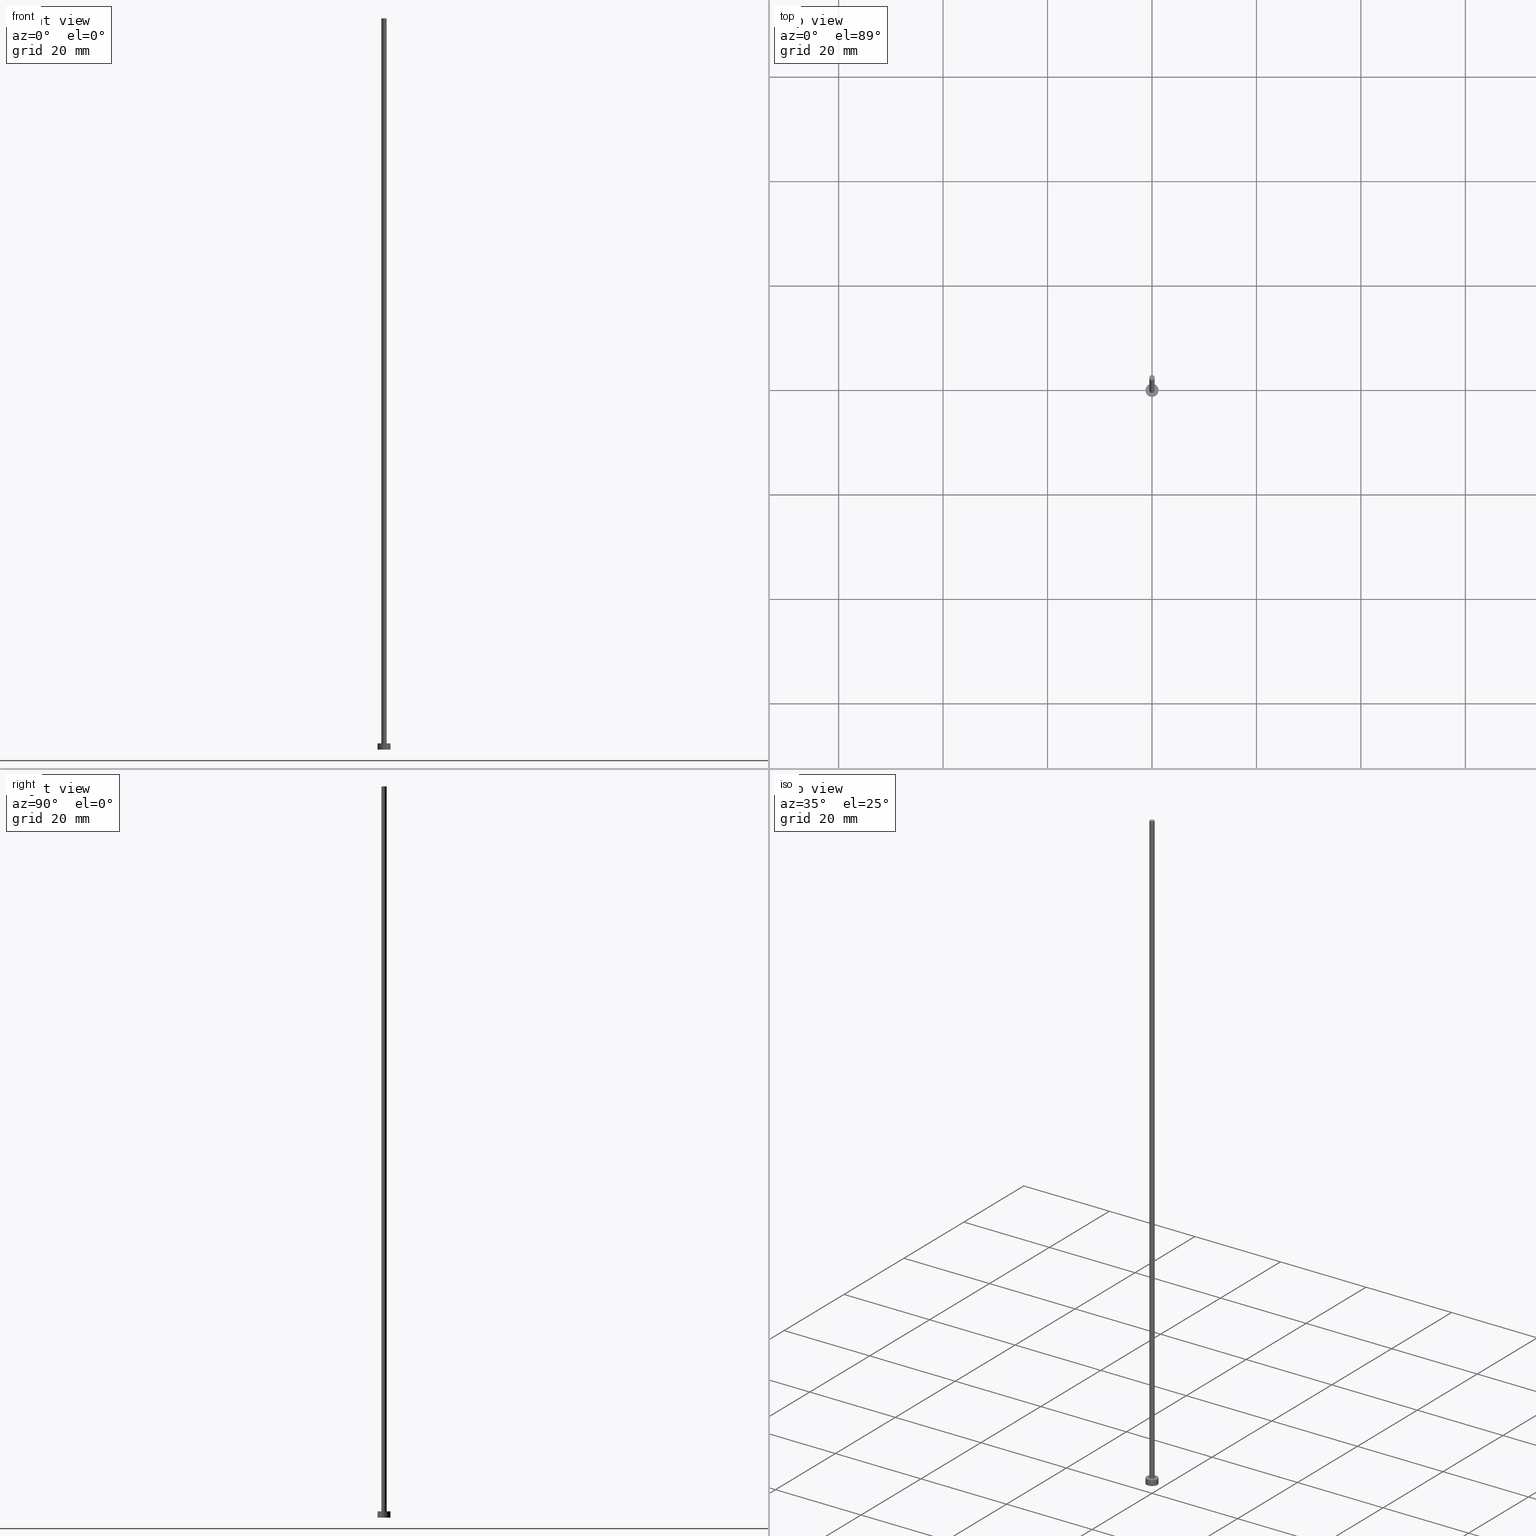
[diagram: canonical four-view strip — front | top / right | iso, engineering-drawing reading convention]
A machine part, canonical four-view strip (front | top / right | iso — engineering-drawing reading convention). The complete STEP part file that produces these views, byte-faithful:
ISO-10303-21;
HEADER;
FILE_DESCRIPTION (( 'STEP AP203' ),
    '1' );
FILE_NAME ('da0a.STEP',
    '2023-09-27T12:15:34',
    ( '' ),
    ( '' ),
    'SwSTEP 2.0',
    'SolidWorks 2019',
    '' );
FILE_SCHEMA (( 'CONFIG_CONTROL_DESIGN' ));
ENDSEC;

DATA;
#1 = PERSON_AND_ORGANIZATION ( #19, #125 ) ;
#2 = DIRECTION ( 'NONE',  ( -1.000000000000000000, 0.000000000000000000, 0.000000000000000000 ) ) ;
#3 = VECTOR ( 'NONE', #30, 1000.000000000000000 ) ;
#4 = LINE ( 'NONE', #155, #228 ) ;
#5 = APPROVAL_ROLE ( '' ) ;
#6 = FACE_OUTER_BOUND ( 'NONE', #32, .T. ) ;
#7 = LOCAL_TIME ( 14, 15, 34.00000000000000000, #142 ) ;
#8 = FACE_OUTER_BOUND ( 'NONE', #252, .T. ) ;
#9 =( NAMED_UNIT ( * ) PLANE_ANGLE_UNIT ( ) SI_UNIT ( $, .RADIAN. ) );
#10 = DIRECTION ( 'NONE',  ( -0.000000000000000000, -0.000000000000000000, -1.000000000000000000 ) ) ;
#11 = PRODUCT_DEFINITION_FORMATION_WITH_SPECIFIED_SOURCE ( 'LIBOVOLN�', '', #188, .NOT_KNOWN. ) ;
#12 = ORIENTED_EDGE ( 'NONE', *, *, #185, .T. ) ;
#13 = DIRECTION ( 'NONE',  ( 0.000000000000000000, 0.000000000000000000, 1.000000000000000000 ) ) ;
#14 = CC_DESIGN_DATE_AND_TIME_ASSIGNMENT ( #74, #233, ( #140 ) ) ;
#15 = ORIENTED_EDGE ( 'NONE', *, *, #128, .F. ) ;
#16 = DIRECTION ( 'NONE',  ( 0.000000000000000000, 0.000000000000000000, 1.000000000000000000 ) ) ;
#17 = ORIENTED_EDGE ( 'NONE', *, *, #173, .T. ) ;
#18 = ADVANCED_FACE ( 'NONE', ( #171 ), #172, .T. ) ;
#19 = PERSON ( 'NEUR�EN�', 'NEUR�EN�', 'NEUR�EN�', ('NEUR�EN�'), ('NEUR�EN�'), ('NEUR�EN�') ) ;
#20 = AXIS2_PLACEMENT_3D ( 'NONE', #135, #100, #212 ) ;
#21 = AXIS2_PLACEMENT_3D ( 'NONE', #29, #183, #24 ) ;
#22 = CARTESIAN_POINT ( 'NONE',  ( 0.000000000000000000, 0.000000000000000000, 140.0000000000000000 ) ) ;
#23 = SECURITY_CLASSIFICATION_LEVEL ( 'unclassified' ) ;
#24 = DIRECTION ( 'NONE',  ( 1.000000000000000000, 0.000000000000000000, -0.000000000000000000 ) ) ;
#25 = PERSON_AND_ORGANIZATION ( #19, #125 ) ;
#26 = CARTESIAN_POINT ( 'NONE',  ( 0.000000000000000000, 0.000000000000000000, 1.199999999999999956 ) ) ;
#27 = CARTESIAN_POINT ( 'NONE',  ( 1.250000000000000000, 1.530808498934191571E-16, 0.000000000000000000 ) ) ;
#28 = CARTESIAN_POINT ( 'NONE',  ( 0.000000000000000000, 0.000000000000000000, 140.0000000000000000 ) ) ;
#29 = CARTESIAN_POINT ( 'NONE',  ( 0.000000000000000000, 0.000000000000000000, 0.000000000000000000 ) ) ;
#30 = DIRECTION ( 'NONE',  ( -0.000000000000000000, -0.000000000000000000, -1.000000000000000000 ) ) ;
#31 = LINE ( 'NONE', #204, #143 ) ;
#32 = EDGE_LOOP ( 'NONE', ( #15, #134 ) ) ;
#33 = CC_DESIGN_APPROVAL ( #99, ( #145 ) ) ;
#34 = ORIENTED_EDGE ( 'NONE', *, *, #63, .F. ) ;
#35 = APPROVAL ( #124, 'NEUR�EN�' ) ;
#36 = ORIENTED_EDGE ( 'NONE', *, *, #147, .F. ) ;
#37 = APPROVAL ( #202, 'NEUR�EN�' ) ;
#38 = DIRECTION ( 'NONE',  ( 1.000000000000000000, 0.000000000000000000, 0.000000000000000000 ) ) ;
#39 = CIRCLE ( 'NONE', #64, 0.5000000000000000000 ) ;
#40 = VERTEX_POINT ( 'NONE', #215 ) ;
#41 = LOCAL_TIME ( 14, 15, 34.00000000000000000, #82 ) ;
#42 = CARTESIAN_POINT ( 'NONE',  ( 0.000000000000000000, 0.000000000000000000, 1.199999999999999956 ) ) ;
#43 = CALENDAR_DATE ( 2023, 27, 9 ) ;
#44 = LOCAL_TIME ( 14, 15, 34.00000000000000000, #240 ) ;
#45 = PERSON_AND_ORGANIZATION_ROLE ( 'creator' ) ;
#46 = CARTESIAN_POINT ( 'NONE',  ( 0.000000000000000000, 0.000000000000000000, 0.000000000000000000 ) ) ;
#47 = SHAPE_DEFINITION_REPRESENTATION ( #162, #90 ) ;
#48 = CARTESIAN_POINT ( 'NONE',  ( -0.5000000000000000000, 0.000000000000000000, 140.0000000000000000 ) ) ;
#49 = PERSON_AND_ORGANIZATION ( #19, #125 ) ;
#50 = CARTESIAN_POINT ( 'NONE',  ( 0.000000000000000000, 0.000000000000000000, 0.000000000000000000 ) ) ;
#51 = UNCERTAINTY_MEASURE_WITH_UNIT (LENGTH_MEASURE( 1.000000000000000082E-05 ), #113, 'distance_accuracy_value', 'NONE');
#52 = ORIENTED_EDGE ( 'NONE', *, *, #207, .F. ) ;
#53 = MANIFOLD_SOLID_BREP ( 'P�idat vysunut�m3', #111 ) ;
#54 =( NAMED_UNIT ( * ) SI_UNIT ( $, .STERADIAN. ) SOLID_ANGLE_UNIT ( ) );
#55 = CC_DESIGN_PERSON_AND_ORGANIZATION_ASSIGNMENT ( #136, #154, ( #11 ) ) ;
#56 = DIRECTION ( 'NONE',  ( 1.000000000000000000, 0.000000000000000000, 0.000000000000000000 ) ) ;
#57 = ORIENTED_EDGE ( 'NONE', *, *, #81, .T. ) ;
#58 = VERTEX_POINT ( 'NONE', #59 ) ;
#59 = CARTESIAN_POINT ( 'NONE',  ( 1.250000000000000000, 1.530808498934191571E-16, 1.199999999999999956 ) ) ;
#60 = EDGE_CURVE ( 'NONE', #58, #209, #241, .T. ) ;
#61 = CARTESIAN_POINT ( 'NONE',  ( 1.250000000000000000, 1.530808498934191571E-16, 1.199999999999999956 ) ) ;
#62 = LINE ( 'NONE', #61, #224 ) ;
#63 = EDGE_CURVE ( 'NONE', #71, #117, #88, .T. ) ;
#64 = AXIS2_PLACEMENT_3D ( 'NONE', #73, #213, #38 ) ;
#65 = DIRECTION ( 'NONE',  ( -1.000000000000000000, 0.000000000000000000, 0.000000000000000000 ) ) ;
#66 = APPROVAL_PERSON_ORGANIZATION ( #129, #37, #109 ) ;
#67 = DATE_AND_TIME ( #43, #41 ) ;
#68 = CARTESIAN_POINT ( 'NONE',  ( 0.000000000000000000, 0.000000000000000000, 0.000000000000000000 ) ) ;
#69 = APPROVAL_PERSON_ORGANIZATION ( #25, #35, #5 ) ;
#70 = AXIS2_PLACEMENT_3D ( 'NONE', #26, #239, #139 ) ;
#71 = VERTEX_POINT ( 'NONE', #132 ) ;
#72 = CALENDAR_DATE ( 2023, 27, 9 ) ;
#73 = CARTESIAN_POINT ( 'NONE',  ( 0.000000000000000000, 0.000000000000000000, 1.199999999999999956 ) ) ;
#74 = DATE_AND_TIME ( #72, #175 ) ;
#75 = DIRECTION ( 'NONE',  ( 1.000000000000000000, 0.000000000000000000, -0.000000000000000000 ) ) ;
#76 = EDGE_CURVE ( 'NONE', #40, #187, #253, .T. ) ;
#77 = CARTESIAN_POINT ( 'NONE',  ( 0.000000000000000000, 0.000000000000000000, 140.0000000000000000 ) ) ;
#78 = DIRECTION ( 'NONE',  ( 1.000000000000000000, 0.000000000000000000, 0.000000000000000000 ) ) ;
#79 = DATE_AND_TIME ( #126, #121 ) ;
#80 = DIRECTION ( 'NONE',  ( 0.000000000000000000, 0.000000000000000000, 1.000000000000000000 ) ) ;
#81 = EDGE_CURVE ( 'NONE', #187, #40, #39, .T. ) ;
#82 = COORDINATED_UNIVERSAL_TIME_OFFSET ( 1, 0, .AHEAD. ) ;
#83 = CARTESIAN_POINT ( 'NONE',  ( 0.000000000000000000, 0.000000000000000000, 1.199999999999999956 ) ) ;
#84 = PERSON_AND_ORGANIZATION ( #19, #125 ) ;
#85 = PLANE ( 'NONE',  #21 ) ;
#86 = AXIS2_PLACEMENT_3D ( 'NONE', #28, #237, #156 ) ;
#87 = FACE_OUTER_BOUND ( 'NONE', #192, .T. ) ;
#88 = CIRCLE ( 'NONE', #115, 0.5000000000000000000 ) ;
#89 = PERSON_AND_ORGANIZATION_ROLE ( 'design_owner' ) ;
#90 = ADVANCED_BREP_SHAPE_REPRESENTATION ( 'da0a', ( #53, #103 ), #236 ) ;
#91 = CC_DESIGN_APPROVAL ( #37, ( #140 ) ) ;
#92 = CC_DESIGN_PERSON_AND_ORGANIZATION_ASSIGNMENT ( #49, #89, ( #188 ) ) ;
#93 = ORIENTED_EDGE ( 'NONE', *, *, #185, .F. ) ;
#94 = DIRECTION ( 'NONE',  ( 1.000000000000000000, 0.000000000000000000, 0.000000000000000000 ) ) ;
#95 = AXIS2_PLACEMENT_3D ( 'NONE', #194, #80, #181 ) ;
#96 = ORIENTED_EDGE ( 'NONE', *, *, #254, .F. ) ;
#97 = ORIENTED_EDGE ( 'NONE', *, *, #128, .T. ) ;
#98 = ORIENTED_EDGE ( 'NONE', *, *, #245, .F. ) ;
#99 = APPROVAL ( #243, 'NEUR�EN�' ) ;
#100 = DIRECTION ( 'NONE',  ( 0.000000000000000000, 0.000000000000000000, 1.000000000000000000 ) ) ;
#101 = APPLICATION_CONTEXT ( 'configuration controlled 3d designs of mechanical parts and assemblies' ) ;
#102 = CIRCLE ( 'NONE', #201, 1.250000000000000000 ) ;
#103 = AXIS2_PLACEMENT_3D ( 'NONE', #50, #13, #94 ) ;
#104 = DATE_TIME_ROLE ( 'classification_date' ) ;
#105 = CYLINDRICAL_SURFACE ( 'NONE', #161, 1.250000000000000000 ) ;
#106 = DIRECTION ( 'NONE',  ( -1.000000000000000000, 0.000000000000000000, 0.000000000000000000 ) ) ;
#107 = AXIS2_PLACEMENT_3D ( 'NONE', #83, #222, #65 ) ;
#108 = ADVANCED_FACE ( 'NONE', ( #169 ), #179, .T. ) ;
#109 = APPROVAL_ROLE ( '' ) ;
#110 = CALENDAR_DATE ( 2023, 27, 9 ) ;
#111 = CLOSED_SHELL ( 'NONE', ( #232, #108, #223, #133, #227, #112, #18 ) ) ;
#112 = ADVANCED_FACE ( 'NONE', ( #8 ), #174, .T. ) ;
#113 =( LENGTH_UNIT ( ) NAMED_UNIT ( * ) SI_UNIT ( .MILLI., .METRE. ) );
#114 = VERTEX_POINT ( 'NONE', #153 ) ;
#115 = AXIS2_PLACEMENT_3D ( 'NONE', #77, #235, #56 ) ;
#116 = CIRCLE ( 'NONE', #170, 1.250000000000000000 ) ;
#117 = VERTEX_POINT ( 'NONE', #48 ) ;
#118 = EDGE_LOOP ( 'NONE', ( #34, #152, #57, #96 ) ) ;
#119 = ORIENTED_EDGE ( 'NONE', *, *, #207, .T. ) ;
#120 = CC_DESIGN_DATE_AND_TIME_ASSIGNMENT ( #216, #104, ( #145 ) ) ;
#121 = LOCAL_TIME ( 14, 15, 34.00000000000000000, #238 ) ;
#122 = PLANE ( 'NONE',  #70 ) ;
#123 = CARTESIAN_POINT ( 'NONE',  ( 0.000000000000000000, 0.000000000000000000, 140.0000000000000000 ) ) ;
#124 = APPROVAL_STATUS ( 'not_yet_approved' ) ;
#125 = ORGANIZATION ( 'NEUR�EN�', 'NEUR�EN�', '' ) ;
#126 = CALENDAR_DATE ( 2023, 27, 9 ) ;
#127 = DIRECTION ( 'NONE',  ( -0.000000000000000000, -0.000000000000000000, -1.000000000000000000 ) ) ;
#128 = EDGE_CURVE ( 'NONE', #114, #191, #102, .T. ) ;
#129 = PERSON_AND_ORGANIZATION ( #19, #125 ) ;
#130 = ORIENTED_EDGE ( 'NONE', *, *, #163, .T. ) ;
#131 = CARTESIAN_POINT ( 'NONE',  ( 0.000000000000000000, 0.000000000000000000, 1.199999999999999956 ) ) ;
#132 = CARTESIAN_POINT ( 'NONE',  ( 0.5000000000000000000, 6.123233995736766036E-17, 140.0000000000000000 ) ) ;
#133 = ADVANCED_FACE ( 'NONE', ( #196, #87 ), #122, .T. ) ;
#134 = ORIENTED_EDGE ( 'NONE', *, *, #173, .F. ) ;
#135 = CARTESIAN_POINT ( 'NONE',  ( 0.000000000000000000, 0.000000000000000000, 1.199999999999999956 ) ) ;
#136 = PERSON_AND_ORGANIZATION ( #19, #125 ) ;
#137 = CARTESIAN_POINT ( 'NONE',  ( -1.250000000000000000, 0.000000000000000000, 1.199999999999999956 ) ) ;
#138 = AXIS2_PLACEMENT_3D ( 'NONE', #141, #203, #210 ) ;
#139 = DIRECTION ( 'NONE',  ( 1.000000000000000000, 0.000000000000000000, -0.000000000000000000 ) ) ;
#140 = PRODUCT_DEFINITION ( 'NEZN�M�', '', #11, #159 ) ;
#141 = CARTESIAN_POINT ( 'NONE',  ( 0.000000000000000000, 0.000000000000000000, 140.0000000000000000 ) ) ;
#142 = COORDINATED_UNIVERSAL_TIME_OFFSET ( 1, 0, .AHEAD. ) ;
#143 = VECTOR ( 'NONE', #10, 1000.000000000000000 ) ;
#144 = ORIENTED_EDGE ( 'NONE', *, *, #147, .T. ) ;
#145 = SECURITY_CLASSIFICATION ( '', '', #23 ) ;
#146 = APPLICATION_PROTOCOL_DEFINITION ( 'international standard', 'config_control_design', 1994, #219 ) ;
#147 = EDGE_CURVE ( 'NONE', #209, #58, #214, .T. ) ;
#148 = DIRECTION ( 'NONE',  ( 0.000000000000000000, 0.000000000000000000, 1.000000000000000000 ) ) ;
#149 = EDGE_LOOP ( 'NONE', ( #226, #250 ) ) ;
#150 = PRODUCT_RELATED_PRODUCT_CATEGORY ( 'detail', '', ( #188 ) ) ;
#151 = CC_DESIGN_APPROVAL ( #35, ( #11 ) ) ;
#152 = ORIENTED_EDGE ( 'NONE', *, *, #245, .T. ) ;
#153 = CARTESIAN_POINT ( 'NONE',  ( -1.250000000000000000, 0.000000000000000000, 0.000000000000000000 ) ) ;
#154 = PERSON_AND_ORGANIZATION_ROLE ( 'design_supplier' ) ;
#155 = CARTESIAN_POINT ( 'NONE',  ( -1.250000000000000000, 0.000000000000000000, 1.199999999999999956 ) ) ;
#156 = DIRECTION ( 'NONE',  ( 1.000000000000000000, 0.000000000000000000, 0.000000000000000000 ) ) ;
#157 = PERSON_AND_ORGANIZATION_ROLE ( 'classification_officer' ) ;
#158 = FACE_OUTER_BOUND ( 'NONE', #118, .T. ) ;
#159 = DESIGN_CONTEXT ( 'detailed design', #219, 'design' ) ;
#160 = CARTESIAN_POINT ( 'NONE',  ( 0.5000000000000000000, 6.123233995736766036E-17, 140.0000000000000000 ) ) ;
#161 = AXIS2_PLACEMENT_3D ( 'NONE', #42, #127, #106 ) ;
#162 = PRODUCT_DEFINITION_SHAPE ( 'NONE', 'NONE',  #140 ) ;
#163 = EDGE_CURVE ( 'NONE', #117, #71, #234, .T. ) ;
#164 = APPLICATION_PROTOCOL_DEFINITION ( 'international standard', 'config_control_design', 1994, #101 ) ;
#165 = COORDINATED_UNIVERSAL_TIME_OFFSET ( 1, 0, .AHEAD. ) ;
#166 = EDGE_LOOP ( 'NONE', ( #52, #36, #12, #97 ) ) ;
#167 = DIRECTION ( 'NONE',  ( 1.000000000000000000, 0.000000000000000000, 0.000000000000000000 ) ) ;
#168 = AXIS2_PLACEMENT_3D ( 'NONE', #131, #16, #167 ) ;
#169 = FACE_OUTER_BOUND ( 'NONE', #231, .T. ) ;
#170 = AXIS2_PLACEMENT_3D ( 'NONE', #46, #198, #177 ) ;
#171 = FACE_OUTER_BOUND ( 'NONE', #255, .T. ) ;
#172 = PLANE ( 'NONE',  #186 ) ;
#173 = EDGE_CURVE ( 'NONE', #191, #114, #116, .T. ) ;
#174 = CYLINDRICAL_SURFACE ( 'NONE', #182, 0.5000000000000000000 ) ;
#175 = LOCAL_TIME ( 14, 15, 34.00000000000000000, #165 ) ;
#176 = PERSON_AND_ORGANIZATION ( #19, #125 ) ;
#177 = DIRECTION ( 'NONE',  ( 1.000000000000000000, 0.000000000000000000, 0.000000000000000000 ) ) ;
#178 = APPROVAL_DATE_TIME ( #67, #99 ) ;
#179 = CYLINDRICAL_SURFACE ( 'NONE', #107, 1.250000000000000000 ) ;
#180 = CC_DESIGN_PERSON_AND_ORGANIZATION_ASSIGNMENT ( #84, #45, ( #11 ) ) ;
#181 = DIRECTION ( 'NONE',  ( 1.000000000000000000, 0.000000000000000000, 0.000000000000000000 ) ) ;
#182 = AXIS2_PLACEMENT_3D ( 'NONE', #123, #221, #2 ) ;
#183 = DIRECTION ( 'NONE',  ( 0.000000000000000000, 0.000000000000000000, 1.000000000000000000 ) ) ;
#184 = APPROVAL_DATE_TIME ( #225, #37 ) ;
#185 = EDGE_CURVE ( 'NONE', #209, #114, #4, .T. ) ;
#186 = AXIS2_PLACEMENT_3D ( 'NONE', #22, #148, #75 ) ;
#187 = VERTEX_POINT ( 'NONE', #246 ) ;
#188 = PRODUCT ( 'da0a', 'da0a', '', ( #249 ) ) ;
#189 = PERSON_AND_ORGANIZATION ( #19, #125 ) ;
#190 = ORIENTED_EDGE ( 'NONE', *, *, #254, .T. ) ;
#191 = VERTEX_POINT ( 'NONE', #27 ) ;
#192 = EDGE_LOOP ( 'NONE', ( #144, #229 ) ) ;
#193 = APPROVAL_DATE_TIME ( #79, #35 ) ;
#194 = CARTESIAN_POINT ( 'NONE',  ( 0.000000000000000000, 0.000000000000000000, 1.199999999999999956 ) ) ;
#195 = APPROVAL_ROLE ( '' ) ;
#196 = FACE_BOUND ( 'NONE', #149, .T. ) ;
#197 = CC_DESIGN_PERSON_AND_ORGANIZATION_ASSIGNMENT ( #1, #157, ( #145 ) ) ;
#198 = DIRECTION ( 'NONE',  ( 0.000000000000000000, 0.000000000000000000, 1.000000000000000000 ) ) ;
#199 = DIRECTION ( 'NONE',  ( -0.000000000000000000, -0.000000000000000000, -1.000000000000000000 ) ) ;
#200 = DIRECTION ( 'NONE',  ( -0.000000000000000000, -0.000000000000000000, -1.000000000000000000 ) ) ;
#201 = AXIS2_PLACEMENT_3D ( 'NONE', #68, #217, #78 ) ;
#202 = APPROVAL_STATUS ( 'not_yet_approved' ) ;
#203 = DIRECTION ( 'NONE',  ( -0.000000000000000000, -0.000000000000000000, -1.000000000000000000 ) ) ;
#204 = CARTESIAN_POINT ( 'NONE',  ( -0.5000000000000000000, 0.000000000000000000, 140.0000000000000000 ) ) ;
#205 = ORIENTED_EDGE ( 'NONE', *, *, #60, .F. ) ;
#206 = LINE ( 'NONE', #160, #3 ) ;
#207 = EDGE_CURVE ( 'NONE', #58, #191, #62, .T. ) ;
#208 = CC_DESIGN_SECURITY_CLASSIFICATION ( #145, ( #11 ) ) ;
#209 = VERTEX_POINT ( 'NONE', #137 ) ;
#210 = DIRECTION ( 'NONE',  ( -1.000000000000000000, 0.000000000000000000, 0.000000000000000000 ) ) ;
#211 = ORIENTED_EDGE ( 'NONE', *, *, #63, .T. ) ;
#212 = DIRECTION ( 'NONE',  ( 1.000000000000000000, 0.000000000000000000, 0.000000000000000000 ) ) ;
#213 = DIRECTION ( 'NONE',  ( 0.000000000000000000, 0.000000000000000000, 1.000000000000000000 ) ) ;
#214 = CIRCLE ( 'NONE', #95, 1.250000000000000000 ) ;
#215 = CARTESIAN_POINT ( 'NONE',  ( -0.5000000000000000000, 0.000000000000000000, 1.199999999999999956 ) ) ;
#216 = DATE_AND_TIME ( #220, #44 ) ;
#217 = DIRECTION ( 'NONE',  ( 0.000000000000000000, 0.000000000000000000, 1.000000000000000000 ) ) ;
#218 = FACE_OUTER_BOUND ( 'NONE', #166, .T. ) ;
#219 = APPLICATION_CONTEXT ( 'configuration controlled 3d designs of mechanical parts and assemblies' ) ;
#220 = CALENDAR_DATE ( 2023, 27, 9 ) ;
#221 = DIRECTION ( 'NONE',  ( -0.000000000000000000, -0.000000000000000000, -1.000000000000000000 ) ) ;
#222 = DIRECTION ( 'NONE',  ( -0.000000000000000000, -0.000000000000000000, -1.000000000000000000 ) ) ;
#223 = ADVANCED_FACE ( 'NONE', ( #218 ), #105, .T. ) ;
#224 = VECTOR ( 'NONE', #200, 1000.000000000000000 ) ;
#225 = DATE_AND_TIME ( #110, #7 ) ;
#226 = ORIENTED_EDGE ( 'NONE', *, *, #76, .F. ) ;
#227 = ADVANCED_FACE ( 'NONE', ( #6 ), #85, .F. ) ;
#228 = VECTOR ( 'NONE', #199, 1000.000000000000000 ) ;
#229 = ORIENTED_EDGE ( 'NONE', *, *, #60, .T. ) ;
#230 = ORIENTED_EDGE ( 'NONE', *, *, #76, .T. ) ;
#231 = EDGE_LOOP ( 'NONE', ( #205, #119, #17, #93 ) ) ;
#232 = ADVANCED_FACE ( 'NONE', ( #158 ), #244, .T. ) ;
#233 = DATE_TIME_ROLE ( 'creation_date' ) ;
#234 = CIRCLE ( 'NONE', #86, 0.5000000000000000000 ) ;
#235 = DIRECTION ( 'NONE',  ( 0.000000000000000000, 0.000000000000000000, 1.000000000000000000 ) ) ;
#236 =( GEOMETRIC_REPRESENTATION_CONTEXT ( 3 ) GLOBAL_UNCERTAINTY_ASSIGNED_CONTEXT ( ( #51 ) ) GLOBAL_UNIT_ASSIGNED_CONTEXT ( ( #113, #9, #54 ) ) REPRESENTATION_CONTEXT ( 'NONE', 'WORKASPACE' ) );
#237 = DIRECTION ( 'NONE',  ( 0.000000000000000000, 0.000000000000000000, 1.000000000000000000 ) ) ;
#238 = COORDINATED_UNIVERSAL_TIME_OFFSET ( 1, 0, .AHEAD. ) ;
#239 = DIRECTION ( 'NONE',  ( 0.000000000000000000, 0.000000000000000000, 1.000000000000000000 ) ) ;
#240 = COORDINATED_UNIVERSAL_TIME_OFFSET ( 1, 0, .AHEAD. ) ;
#241 = CIRCLE ( 'NONE', #20, 1.250000000000000000 ) ;
#242 = APPROVAL_PERSON_ORGANIZATION ( #176, #99, #195 ) ;
#243 = APPROVAL_STATUS ( 'not_yet_approved' ) ;
#244 = CYLINDRICAL_SURFACE ( 'NONE', #138, 0.5000000000000000000 ) ;
#245 = EDGE_CURVE ( 'NONE', #71, #187, #206, .T. ) ;
#246 = CARTESIAN_POINT ( 'NONE',  ( 0.5000000000000000000, 6.123233995736766036E-17, 1.199999999999999956 ) ) ;
#247 = CC_DESIGN_PERSON_AND_ORGANIZATION_ASSIGNMENT ( #189, #251, ( #140 ) ) ;
#248 = ORIENTED_EDGE ( 'NONE', *, *, #163, .F. ) ;
#249 = MECHANICAL_CONTEXT ( 'NONE', #101, 'mechanical' ) ;
#250 = ORIENTED_EDGE ( 'NONE', *, *, #81, .F. ) ;
#251 = PERSON_AND_ORGANIZATION_ROLE ( 'creator' ) ;
#252 = EDGE_LOOP ( 'NONE', ( #98, #248, #190, #230 ) ) ;
#253 = CIRCLE ( 'NONE', #168, 0.5000000000000000000 ) ;
#254 = EDGE_CURVE ( 'NONE', #117, #40, #31, .T. ) ;
#255 = EDGE_LOOP ( 'NONE', ( #130, #211 ) ) ;
ENDSEC;
END-ISO-10303-21;
